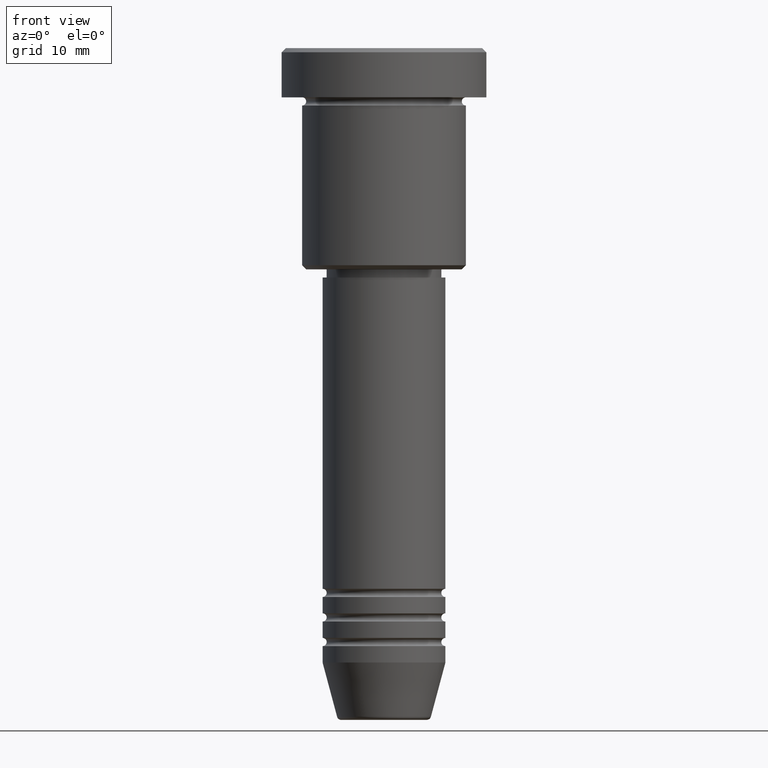
[diagram: clean part render]
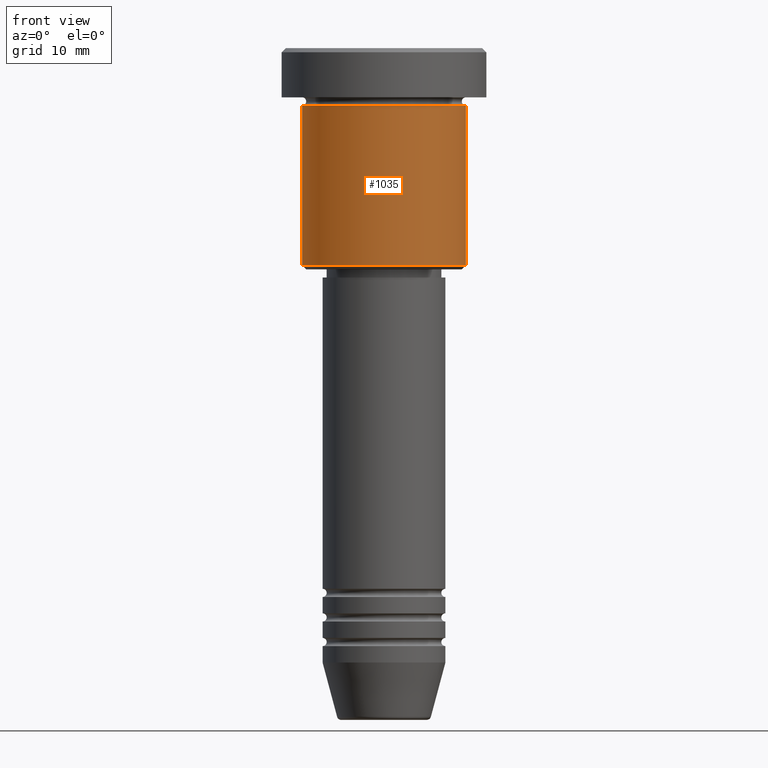
[diagram: same view with one face highlighted and labeled with its STEP entity id]
A machine part, front view. The second image highlights one B-rep face of the part: STEP entity #1035.
In plain terms, the highlighted cylindrical surface (partial cylindrical patch) has radius 10 mm, axis along (-0, -0, 1).
Its self-contained STEP definition (entity closure, byte-faithful):
#16 = EDGE_CURVE ( 'NONE', #558, #861, #677, .T. ) ;
#47 = CARTESIAN_POINT ( 'NONE',  ( 10.00000000000000000, 0.000000000000000000, -6.999999999999996447 ) ) ;
#55 = CYLINDRICAL_SURFACE ( 'NONE', #1066, 10.00000000000000000 ) ;
#77 = DIRECTION ( 'NONE',  ( 1.000000000000000000, 0.000000000000000000, 0.000000000000000000 ) ) ;
#100 = ORIENTED_EDGE ( 'NONE', *, *, #16, .F. ) ;
#102 = DIRECTION ( 'NONE',  ( -0.000000000000000000, -0.000000000000000000, 1.000000000000000000 ) ) ;
#111 = AXIS2_PLACEMENT_3D ( 'NONE', #577, #684, #672 ) ;
#132 = CARTESIAN_POINT ( 'NONE',  ( -10.00000000000000000, 1.224646799147353256E-15, 0.000000000000000000 ) ) ;
#144 = DIRECTION ( 'NONE',  ( -0.000000000000000000, -0.000000000000000000, 1.000000000000000000 ) ) ;
#234 = FACE_OUTER_BOUND ( 'NONE', #678, .T. ) ;
#273 = LINE ( 'NONE', #556, #483 ) ;
#387 = EDGE_CURVE ( 'NONE', #558, #793, #1018, .T. ) ;
#476 = CARTESIAN_POINT ( 'NONE',  ( 0.000000000000000000, 0.000000000000000000, -6.999999999999996447 ) ) ;
#481 = ORIENTED_EDGE ( 'NONE', *, *, #939, .F. ) ;
#483 = VECTOR ( 'NONE', #102, 1000.000000000000000 ) ;
#484 = CARTESIAN_POINT ( 'NONE',  ( -10.00000000000000000, 1.224646799147353256E-15, -26.50000000000000355 ) ) ;
#485 = ORIENTED_EDGE ( 'NONE', *, *, #915, .T. ) ;
#556 = CARTESIAN_POINT ( 'NONE',  ( 10.00000000000000000, 0.000000000000000000, 0.000000000000000000 ) ) ;
#558 = VERTEX_POINT ( 'NONE', #484 ) ;
#577 = CARTESIAN_POINT ( 'NONE',  ( 0.000000000000000000, 0.000000000000000000, -26.50000000000000355 ) ) ;
#651 = VERTEX_POINT ( 'NONE', #47 ) ;
#656 = CARTESIAN_POINT ( 'NONE',  ( 10.00000000000000000, 0.000000000000000000, -26.50000000000000355 ) ) ;
#672 = DIRECTION ( 'NONE',  ( -1.000000000000000000, 0.000000000000000000, 0.000000000000000000 ) ) ;
#677 = LINE ( 'NONE', #132, #740 ) ;
#678 = EDGE_LOOP ( 'NONE', ( #100, #1009, #485, #481 ) ) ;
#684 = DIRECTION ( 'NONE',  ( -0.000000000000000000, -0.000000000000000000, 1.000000000000000000 ) ) ;
#735 = CIRCLE ( 'NONE', #911, 10.00000000000000000 ) ;
#740 = VECTOR ( 'NONE', #1054, 1000.000000000000000 ) ;
#748 = DIRECTION ( 'NONE',  ( -0.000000000000000000, -0.000000000000000000, 1.000000000000000000 ) ) ;
#761 = DIRECTION ( 'NONE',  ( 1.000000000000000000, 0.000000000000000000, 0.000000000000000000 ) ) ;
#793 = VERTEX_POINT ( 'NONE', #656 ) ;
#802 = CARTESIAN_POINT ( 'NONE',  ( -10.00000000000000000, 1.224646799147353256E-15, -6.999999999999996447 ) ) ;
#861 = VERTEX_POINT ( 'NONE', #802 ) ;
#911 = AXIS2_PLACEMENT_3D ( 'NONE', #476, #748, #761 ) ;
#915 = EDGE_CURVE ( 'NONE', #793, #651, #273, .T. ) ;
#939 = EDGE_CURVE ( 'NONE', #861, #651, #735, .T. ) ;
#978 = CARTESIAN_POINT ( 'NONE',  ( 0.000000000000000000, 0.000000000000000000, 0.000000000000000000 ) ) ;
#1009 = ORIENTED_EDGE ( 'NONE', *, *, #387, .T. ) ;
#1018 = CIRCLE ( 'NONE', #111, 10.00000000000000000 ) ;
#1035 = ADVANCED_FACE ( 'NONE', ( #234 ), #55, .T. ) ;
#1054 = DIRECTION ( 'NONE',  ( -0.000000000000000000, -0.000000000000000000, 1.000000000000000000 ) ) ;
#1066 = AXIS2_PLACEMENT_3D ( 'NONE', #978, #144, #77 ) ;